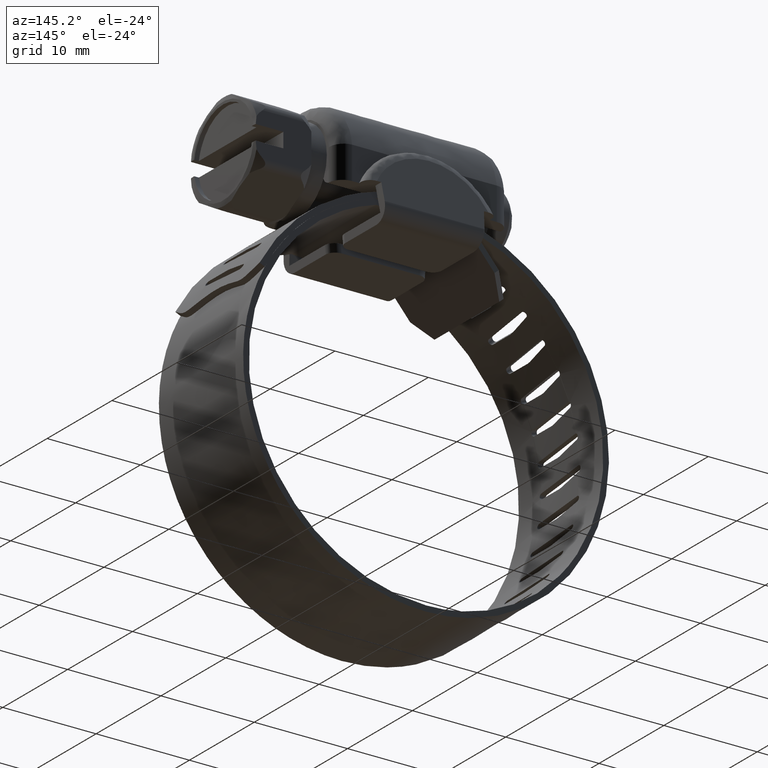
[diagram: clean part render]
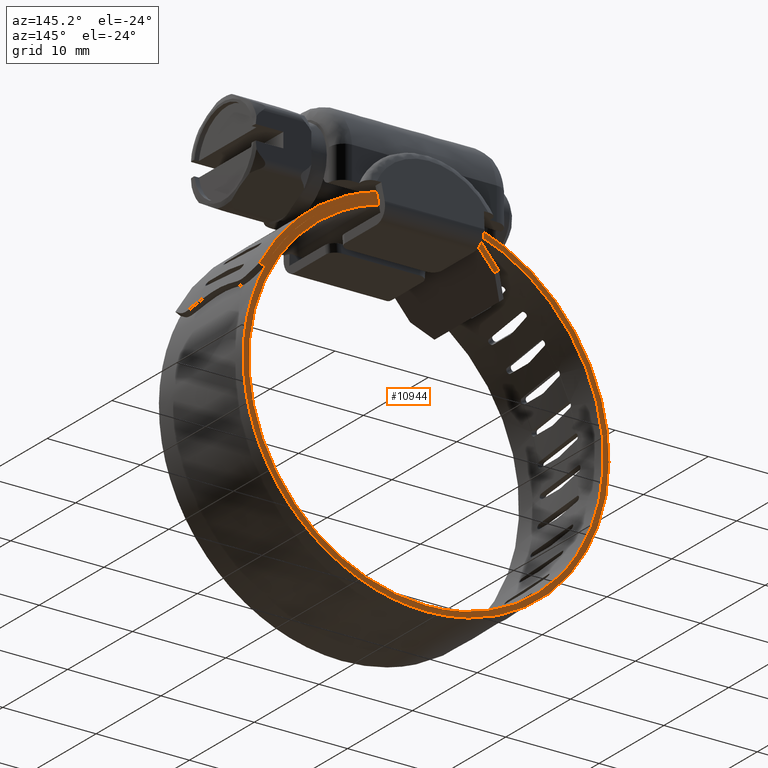
[diagram: same view with one face highlighted and labeled with its STEP entity id]
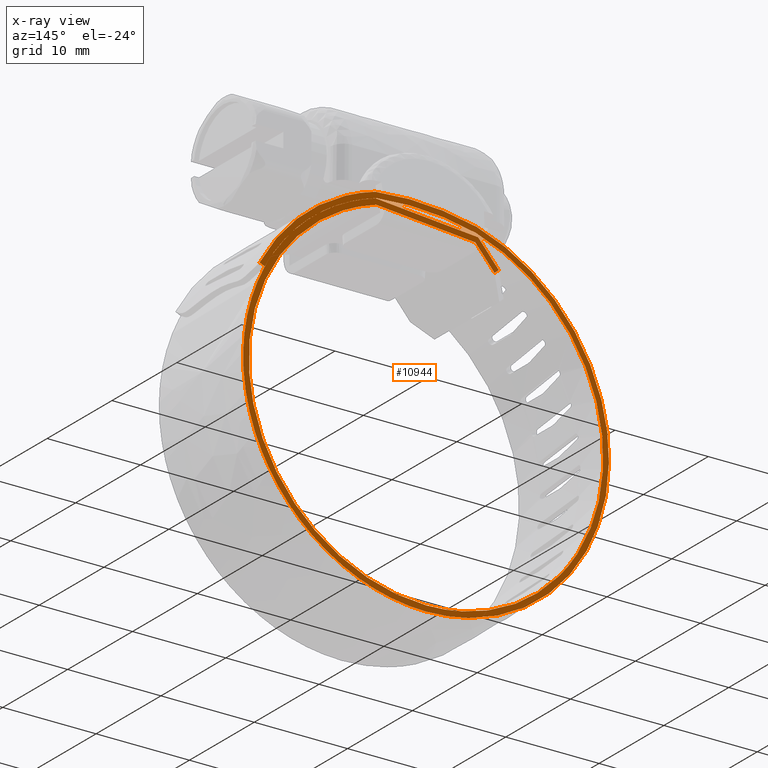
[diagram: x-ray of the same camera — body ghosted, the highlighted face saturated]
A machine part, auxiliary view. The second image highlights one B-rep face of the part: STEP entity #10944.
The next image is the same camera in x-ray: the body ghosted, the highlighted face saturated — about 0% of this face is hidden behind the body in this view.
In plain terms, the highlighted face is a freeform B-spline surface patch.
Its self-contained STEP definition (entity closure, byte-faithful):
#8962=CARTESIAN_POINT('',(-7.334361634838660,6.499999999999799,7.958637563433001));
#8963=VERTEX_POINT('',#8962);
#8976=CARTESIAN_POINT('',(-7.791182140045611,6.499999999999799,8.347630142105899));
#8977=VERTEX_POINT('',#8976);
#8983=CARTESIAN_POINT('',(-7.334361634838660,6.499999999999799,7.958637563433001));
#8984=CARTESIAN_POINT('',(-7.791182140045611,6.499999999999799,8.347630142105899));
#8985=QUASI_UNIFORM_CURVE('',1,(#8983,#8984),.UNSPECIFIED.,.F.,.U.);
#8986=EDGE_CURVE('',#8963,#8977,#8985,.T.);
#9041=CARTESIAN_POINT('',(5.411996900145090,6.499999999999840,11.914001209067280));
#9042=VERTEX_POINT('',#9041);
#9048=CARTESIAN_POINT('',(-5.572333904251720,6.499999999999840,10.953369879985059));
#9049=VERTEX_POINT('',#9048);
#9050=CARTESIAN_POINT('',(-5.572333904251720,6.499999999999840,10.953369879985059));
#9051=CARTESIAN_POINT('',(5.411996900145090,6.499999999999840,11.914001209067280));
#9052=QUASI_UNIFORM_CURVE('',1,(#9050,#9051),.UNSPECIFIED.,.F.,.U.);
#9053=EDGE_CURVE('',#9049,#9042,#9052,.T.);
#9068=CARTESIAN_POINT('',(-7.791182140045611,6.499999999999799,8.347630142105899));
#9069=CARTESIAN_POINT('',(-5.572333904251720,6.499999999999840,10.953369879985059));
#9070=QUASI_UNIFORM_CURVE('',1,(#9068,#9069),.UNSPECIFIED.,.F.,.U.);
#9071=EDGE_CURVE('',#8977,#9049,#9070,.T.);
#9112=CARTESIAN_POINT('',(-5.275000759049860,6.499999999999840,10.377082108597479));
#9113=VERTEX_POINT('',#9112);
#9114=CARTESIAN_POINT('',(-5.275000759049860,6.499999999999840,10.377082108597479));
#9115=CARTESIAN_POINT('',(-7.334361634838660,6.499999999999799,7.958637563433001));
#9116=QUASI_UNIFORM_CURVE('',1,(#9114,#9115),.UNSPECIFIED.,.F.,.U.);
#9117=EDGE_CURVE('',#9113,#8963,#9116,.T.);
#9148=CARTESIAN_POINT('',(5.352451692588431,6.499999999999840,11.306503582690940));
#9149=VERTEX_POINT('',#9148);
#9150=CARTESIAN_POINT('',(5.352451692588431,6.499999999999840,11.306503582690940));
#9151=CARTESIAN_POINT('',(-5.275000759049860,6.499999999999840,10.377082108597479));
#9152=QUASI_UNIFORM_CURVE('',1,(#9150,#9151),.UNSPECIFIED.,.F.,.U.);
#9153=EDGE_CURVE('',#9149,#9113,#9152,.T.);
#10504=CARTESIAN_POINT('',(17.840078122761899,6.499999999999840,2.572089330548310));
#10505=VERTEX_POINT('',#10504);
#10512=CARTESIAN_POINT('',(17.293638261857499,6.499999999999840,2.321657124727315));
#10513=VERTEX_POINT('',#10512);
#10519=CARTESIAN_POINT('',(17.293638261857499,6.499999999999840,2.321657124727315));
#10520=CARTESIAN_POINT('',(17.840078122761899,6.499999999999840,2.572089330548310));
#10521=QUASI_UNIFORM_CURVE('',1,(#10519,#10520),.UNSPECIFIED.,.F.,.U.);
#10522=EDGE_CURVE('',#10513,#10505,#10521,.T.);
#10755=CARTESIAN_POINT('',(-21.537033099898011,6.499999999999799,14.717829198422089));
#10756=CARTESIAN_POINT('',(21.536634747135800,6.499999999999799,14.717829198422089));
#10757=CARTESIAN_POINT('',(-21.537033099898011,6.499999999999799,-28.486026593880521));
#10758=CARTESIAN_POINT('',(21.536634747135800,6.499999999999799,-28.486026593880521));
#10759=B_SPLINE_SURFACE_WITH_KNOTS('',1,1,((#10755,#10757),(#10756,#10758)),.UNSPECIFIED.,.F.,.F.,.U.,(2,2),(2,2),(0.0,43.073667847033818),(0.0,43.203855792302612),.UNSPECIFIED.);
#10760=ORIENTED_EDGE('',*,*,#9117,.T.);
#10761=ORIENTED_EDGE('',*,*,#8986,.T.);
#10762=ORIENTED_EDGE('',*,*,#9071,.T.);
#10763=ORIENTED_EDGE('',*,*,#9053,.T.);
#10764=CARTESIAN_POINT('',(-0.004531895000179,6.499999999999840,-26.523999476069580));
#10765=VERTEX_POINT('',#10764);
#10766=CARTESIAN_POINT('',(-0.004531895000179,6.499999999999840,-26.523999476069580));
#10767=CARTESIAN_POINT('',(0.725886337814285,6.499999999999841,-26.524176945984092));
#10768=CARTESIAN_POINT('',(2.369354966252714,6.499999999999839,-26.432605813740931));
#10769=CARTESIAN_POINT('',(4.745975734426504,6.499999999999850,-25.996601591221609));
#10770=CARTESIAN_POINT('',(7.010584989958026,6.499999999999824,-25.271126520168281));
#10771=CARTESIAN_POINT('',(8.879138861826839,6.499999999999875,-24.432604865221549));
#10772=CARTESIAN_POINT('',(10.560936009352050,6.499999999999796,-23.470479320121552));
#10773=CARTESIAN_POINT('',(12.383304635262210,6.499999999999876,-22.184150816374519));
#10774=CARTESIAN_POINT('',(14.059515369673630,6.499999999999817,-20.652267694753519));
#10775=CARTESIAN_POINT('',(15.794001088472250,6.499999999999834,-18.623584603838111));
#10776=CARTESIAN_POINT('',(17.136928511362271,6.499999999999900,-16.568509648419610));
#10777=CARTESIAN_POINT('',(18.287706328910179,6.499999999999686,-14.118021473316540));
#10778=CARTESIAN_POINT('',(18.987097886712760,6.500000000000273,-11.959074599438351));
#10779=CARTESIAN_POINT('',(19.420080848577481,6.499999999999051,-9.808496574675736));
#10780=CARTESIAN_POINT('',(19.631372888088691,6.500000000000179,-7.661086366921279));
#10781=CARTESIAN_POINT('',(19.585440638702579,6.499999999999673,-5.282755107511505));
#10782=CARTESIAN_POINT('',(19.245682366735071,6.499999999999901,-3.002324633063102));
#10783=CARTESIAN_POINT('',(18.663591472926729,6.499999999999831,-0.811466112911441));
#10784=CARTESIAN_POINT('',(17.753743988054708,6.499999999999843,1.543635155971890));
#10785=CARTESIAN_POINT('',(16.510367340035359,6.499999999999835,3.745670590767302));
#10786=CARTESIAN_POINT('',(15.146703278751010,6.499999999999872,5.556524795908267));
#10787=CARTESIAN_POINT('',(13.651789236462109,6.499999999999614,7.210924098323774));
#10788=CARTESIAN_POINT('',(11.850255652214720,6.500000000000505,8.768768572583571));
#10789=CARTESIAN_POINT('',(9.852344341506793,6.499999999998895,10.058389447612450));
#10790=CARTESIAN_POINT('',(7.801923602922953,6.500000000001353,11.106682167382600));
#10791=CARTESIAN_POINT('',(6.359752564483216,6.499999999998201,11.641788656112359));
#10792=CARTESIAN_POINT('',(5.411996900145090,6.499999999999840,11.914001209067280));
#10793=B_SPLINE_CURVE_WITH_KNOTS('',3,(#10766,#10767,#10768,#10769,#10770,#10771,#10772,#10773,#10774,#10775,#10776,#10777,#10778,#10779,#10780,#10781,#10782,#10783,#10784,#10785,#10786,#10787,#10788,#10789,#10790,#10791,#10792),.UNSPECIFIED.,.F.,.U.,(4,1,1,1,1,1,1,1,1,1,1,1,1,1,1,1,1,1,1,1,1,1,1,1,4),(0.000000016172486,2.191258828288738,4.930341531735550,7.231200000732230,9.312905358273909,11.065920897724940,13.038070963216180,15.996295667064580,17.858874575280630,21.036237479420141,23.337069433180002,25.966607560334609,27.829175664592888,29.910842973488961,32.430832254236940,34.950782125903302,36.813379226954481,39.223773529684081,42.510691446333979,44.373277976478107,46.016735603343278,49.194076442628408,51.494931940516778,53.138371961810130,56.096579930599852),.UNSPECIFIED.);
#10794=EDGE_CURVE('',#10765,#9042,#10793,.T.);
#10795=ORIENTED_EDGE('',*,*,#10794,.F.);
#10796=CARTESIAN_POINT('',(-5.403284909101160,6.499999999999840,11.916501909213560));
#10797=VERTEX_POINT('',#10796);
#10798=CARTESIAN_POINT('',(-5.403284909101160,6.499999999999840,11.916501909213560));
#10799=CARTESIAN_POINT('',(-6.140516903082173,6.499999999999820,11.705094821300660));
#10800=CARTESIAN_POINT('',(-7.486551106623252,6.499999999999877,11.231948068612040));
#10801=CARTESIAN_POINT('',(-9.596948230195309,6.499999999999833,10.220372525541210));
#10802=CARTESIAN_POINT('',(-11.511379028201249,6.499999999999838,9.000892766774353));
#10803=CARTESIAN_POINT('',(-13.090720747617860,6.499999999999849,7.696936439639883));
#10804=CARTESIAN_POINT('',(-14.419790939086530,6.499999999999806,6.390527652845145));
#10805=CARTESIAN_POINT('',(-15.628070589369621,6.499999999999936,4.969215286002469));
#10806=CARTESIAN_POINT('',(-16.756441684473110,6.499999999999666,3.304006357712205));
#10807=CARTESIAN_POINT('',(-17.698934188431551,6.499999999999991,1.569404213287578));
#10808=CARTESIAN_POINT('',(-18.553293871694532,6.499999999999623,-0.451813744564917));
#10809=CARTESIAN_POINT('',(-19.253958891820979,6.500000000000098,-2.916900028260594));
#10810=CARTESIAN_POINT('',(-19.587531319319449,6.499999999999531,-5.384468385986027));
#10811=CARTESIAN_POINT('',(-19.617058673211769,6.500000000000251,-7.468321331348138));
#10812=CARTESIAN_POINT('',(-19.476847408818340,6.499999999999345,-9.400333478388076));
#10813=CARTESIAN_POINT('',(-19.067331741570850,6.500000000000173,-11.743171108005360));
#10814=CARTESIAN_POINT('',(-18.293957137092399,6.499999999999714,-14.111691467228690));
#10815=CARTESIAN_POINT('',(-17.304033755846771,6.499999999999867,-16.191579717471331));
#10816=CARTESIAN_POINT('',(-16.252738149130330,6.499999999999831,-17.948568986104089));
#10817=CARTESIAN_POINT('',(-14.728445938607210,6.499999999999849,-19.961239050203758));
#10818=CARTESIAN_POINT('',(-12.664512282052319,6.499999999999830,-21.991785610794700));
#10819=CARTESIAN_POINT('',(-10.335964055470560,6.499999999999846,-23.646795091448212));
#10820=CARTESIAN_POINT('',(-8.230835672506782,6.499999999999862,-24.752776408187980));
#10821=CARTESIAN_POINT('',(-5.953706084315796,6.499999999999750,-25.655930566800340));
#10822=CARTESIAN_POINT('',(-3.254840614917475,6.500000000000024,-26.342106536156951));
#10823=CARTESIAN_POINT('',(-1.100165826703362,6.499999999999689,-26.523829065230121));
#10824=CARTESIAN_POINT('',(-0.004531895000179,6.499999999999840,-26.523999476069580));
#10825=B_SPLINE_CURVE_WITH_KNOTS('',3,(#10798,#10799,#10800,#10801,#10802,#10803,#10804,#10805,#10806,#10807,#10808,#10809,#10810,#10811,#10812,#10813,#10814,#10815,#10816,#10817,#10818,#10819,#10820,#10821,#10822,#10823,#10824),.UNSPECIFIED.,.F.,.U.,(4,1,1,1,1,1,1,1,1,1,1,1,1,1,1,1,1,1,1,1,1,1,1,1,4),(0.000000016416962,2.300833089275486,4.272961304612949,7.012055833639998,9.093771975293691,10.408537798968570,12.599818114950830,14.681529192904010,16.434548652694161,18.516256564770391,21.255362353368749,24.104001827212080,25.966607560468859,27.500498071829281,29.910842973606780,33.088203585792641,34.950782125999737,36.813379227042731,39.223773529761878,42.510691446396478,45.468910758218158,47.769751351625843,49.632346457777743,52.809687906362171,56.096579930599297),.UNSPECIFIED.);
#10826=EDGE_CURVE('',#10797,#10765,#10825,.T.);
#10827=ORIENTED_EDGE('',*,*,#10826,.F.);
#10828=CARTESIAN_POINT('',(5.456756768785899,6.499999999999840,12.535391192077659));
#10829=VERTEX_POINT('',#10828);
#10830=CARTESIAN_POINT('',(5.456756768785899,6.499999999999840,12.535391192077659));
#10831=CARTESIAN_POINT('',(4.099701335029489,6.499999999999851,12.698084228196890));
#10832=CARTESIAN_POINT('',(1.820006464981645,6.499999999999820,12.819402491195699));
#10833=CARTESIAN_POINT('',(-1.822343654495573,6.499999999999904,12.611826586162071));
#10834=CARTESIAN_POINT('',(-4.073500048048214,6.499999999999801,12.232320164062751));
#10835=CARTESIAN_POINT('',(-5.403284909101160,6.499999999999840,11.916501909213560));
#10836=B_SPLINE_CURVE_WITH_KNOTS('',3,(#10830,#10831,#10832,#10833,#10834,#10835),.UNSPECIFIED.,.F.,.U.,(4,1,1,4),(7.745946E-010,4.100311962892907,6.833848439603918,10.934160401722201),.UNSPECIFIED.);
#10837=EDGE_CURVE('',#10829,#10797,#10836,.T.);
#10838=ORIENTED_EDGE('',*,*,#10837,.F.);
#10839=CARTESIAN_POINT('',(17.840078122761899,6.499999999999840,2.572089330548310));
#10840=CARTESIAN_POINT('',(17.280515982526111,6.499999999999839,3.623561952561824));
#10841=CARTESIAN_POINT('',(16.301105986898559,6.499999999999841,5.126140591840689));
#10842=CARTESIAN_POINT('',(14.468935791277181,6.499999999999825,7.257100688362094));
#10843=CARTESIAN_POINT('',(12.768800282048320,6.499999999999846,8.811603355690153));
#10844=CARTESIAN_POINT('',(10.924133720881031,6.499999999999843,10.112841682599671));
#10845=CARTESIAN_POINT('',(9.227328945242975,6.499999999999844,11.090747472844580));
#10846=CARTESIAN_POINT('',(7.444571493686907,6.499999999999829,11.904262455421801));
#10847=CARTESIAN_POINT('',(6.112097994972267,6.499999999999862,12.351631602519520));
#10848=CARTESIAN_POINT('',(5.456756768785899,6.499999999999840,12.535391192077659));
#10849=B_SPLINE_CURVE_WITH_KNOTS('',3,(#10839,#10840,#10841,#10842,#10843,#10844,#10845,#10846,#10847,#10848),.UNSPECIFIED.,.F.,.U.,(4,1,1,1,1,1,1,4),(1.402956E-009,3.573255003478094,5.359885761785067,8.422670412562852,10.464527578311570,12.123543530547650,14.293025208384741,16.334879746945589),.UNSPECIFIED.);
#10850=EDGE_CURVE('',#10505,#10829,#10849,.T.);
#10851=ORIENTED_EDGE('',*,*,#10850,.F.);
#10852=ORIENTED_EDGE('',*,*,#10522,.F.);
#10853=CARTESIAN_POINT('',(5.294755083418680,6.499999999999840,11.957675471382620));
#10854=VERTEX_POINT('',#10853);
#10855=CARTESIAN_POINT('',(17.293638261857499,6.499999999999840,2.321657124727315));
#10856=CARTESIAN_POINT('',(16.982976060587308,6.499999999999853,2.902751567264222));
#10857=CARTESIAN_POINT('',(16.239267673478480,6.499999999999824,4.139609060696022));
#10858=CARTESIAN_POINT('',(14.763042209389081,6.499999999999878,6.075022204849408));
#10859=CARTESIAN_POINT('',(12.715377065352261,6.499999999999750,8.115917672197305));
#10860=CARTESIAN_POINT('',(10.399339746690670,6.499999999999940,9.780050477675186));
#10861=CARTESIAN_POINT('',(7.876467996132071,6.499999999999816,11.097597668927859));
#10862=CARTESIAN_POINT('',(6.246450531694229,6.499999999999952,11.690860160791139));
#10863=CARTESIAN_POINT('',(5.294755083418680,6.499999999999840,11.957675471382620));
#10864=B_SPLINE_CURVE_WITH_KNOTS('',3,(#10855,#10856,#10857,#10858,#10859,#10860,#10861,#10862,#10863),.UNSPECIFIED.,.F.,.U.,(4,1,1,1,1,1,4),(1.899624E-009,1.976778186998224,4.324205496462335,7.289379132081590,10.625188663040269,12.849066440856520,15.814234351105140),.UNSPECIFIED.);
#10865=EDGE_CURVE('',#10513,#10854,#10864,.T.);
#10866=ORIENTED_EDGE('',*,*,#10865,.T.);
#10867=CARTESIAN_POINT('',(-5.352451692588431,6.499999999999840,11.306503582690940));
#10868=VERTEX_POINT('',#10867);
#10869=CARTESIAN_POINT('',(5.294755083418680,6.499999999999840,11.957675471382620));
#10870=CARTESIAN_POINT('',(3.852328498000840,6.499999999999863,12.123922236274000));
#10871=CARTESIAN_POINT('',(1.726802323171397,6.499999999999822,12.215838354588490));
#10872=CARTESIAN_POINT('',(-1.842551146541560,6.499999999999851,11.997548486138180));
#10873=CARTESIAN_POINT('',(-3.941034636759230,6.499999999999851,11.647284834161550));
#10874=CARTESIAN_POINT('',(-5.352451692588431,6.499999999999840,11.306503582690940));
#10875=B_SPLINE_CURVE_WITH_KNOTS('',3,(#10869,#10870,#10871,#10872,#10873,#10874),.UNSPECIFIED.,.F.,.U.,(4,1,1,4),(7.544241E-010,4.355908433506262,6.366323266907789,10.722231699659860),.UNSPECIFIED.);
#10876=EDGE_CURVE('',#10854,#10868,#10875,.T.);
#10877=ORIENTED_EDGE('',*,*,#10876,.T.);
#10878=CARTESIAN_POINT('',(0.0,6.499999999999840,-25.923999999999999));
#10879=VERTEX_POINT('',#10878);
#10880=CARTESIAN_POINT('',(-5.352451692588431,6.499999999999840,11.306503582690940));
#10881=CARTESIAN_POINT('',(-6.199904557952332,6.499999999999854,11.057736206017280));
#10882=CARTESIAN_POINT('',(-7.826794444529046,6.499999999999823,10.454007476103440));
#10883=CARTESIAN_POINT('',(-10.198668929298350,6.499999999999861,9.182959219649266));
#10884=CARTESIAN_POINT('',(-12.224931504330341,6.499999999999828,7.692436640296440));
#10885=CARTESIAN_POINT('',(-13.781485421391130,6.499999999999866,6.197186626057674));
#10886=CARTESIAN_POINT('',(-14.957738998847210,6.499999999999843,4.830553144242163));
#10887=CARTESIAN_POINT('',(-16.011975830691160,6.499999999999903,3.366928515068491));
#10888=CARTESIAN_POINT('',(-17.068747668649848,6.499999999999863,1.525624448350164));
#10889=CARTESIAN_POINT('',(-17.870360011329531,6.499999999999849,-0.364698511358428));
#10890=CARTESIAN_POINT('',(-18.456516859493540,6.499999999999687,-2.293064095300148));
#10891=CARTESIAN_POINT('',(-18.864745700842811,6.499999999999974,-4.303976029203933));
#10892=CARTESIAN_POINT('',(-19.029549455387450,6.499999999999768,-6.350987960944607));
#10893=CARTESIAN_POINT('',(-18.971215290066102,6.499999999999864,-8.400984797324838));
#10894=CARTESIAN_POINT('',(-18.727658571556422,6.499999999999905,-10.367115735387150));
#10895=CARTESIAN_POINT('',(-18.252752994107141,6.499999999999822,-12.327923049694610));
#10896=CARTESIAN_POINT('',(-17.549859336881550,6.499999999999857,-14.292415287790661));
#10897=CARTESIAN_POINT('',(-16.525458419421231,6.499999999999765,-16.430778769673299));
#10898=CARTESIAN_POINT('',(-15.048244639191450,6.499999999999991,-18.641582540373271));
#10899=CARTESIAN_POINT('',(-13.091227045318460,6.499999999999772,-20.786355317158652));
#10900=CARTESIAN_POINT('',(-11.144596123087220,6.499999999999885,-22.380323868006599));
#10901=CARTESIAN_POINT('',(-9.220241360901907,6.499999999999830,-23.573420346521051));
#10902=CARTESIAN_POINT('',(-7.472583152764227,6.499999999999838,-24.427631828580669));
#10903=CARTESIAN_POINT('',(-5.780311461632272,6.499999999999843,-25.053443446285680));
#10904=CARTESIAN_POINT('',(-4.037311014822396,6.499999999999836,-25.515966773975830));
#10905=CARTESIAN_POINT('',(-2.155013753548566,6.499999999999848,-25.839336901196820));
#10906=CARTESIAN_POINT('',(-0.777219739011237,6.499999999999840,-25.924024309216279));
#10907=CARTESIAN_POINT('',(0.0,6.499999999999840,-25.923999999999999));
#10908=B_SPLINE_CURVE_WITH_KNOTS('',3,(#10880,#10881,#10882,#10883,#10884,#10885,#10886,#10887,#10888,#10889,#10890,#10891,#10892,#10893,#10894,#10895,#10896,#10897,#10898,#10899,#10900,#10901,#10902,#10903,#10904,#10905,#10906,#10907),.UNSPECIFIED.,.F.,.U.,(4,1,1,1,1,1,1,1,1,1,1,1,1,1,1,1,1,1,1,1,1,1,1,1,1,4),(0.000000021341492,2.649630234738467,5.193272695706760,8.054864876527645,10.174572772433370,11.658371465139791,13.460123301493210,15.579833473803060,18.017498766721889,19.607278023968149,21.620997527634628,24.164654794768641,25.754416216812530,27.768095058325201,30.099797147663260,31.795544443779828,34.021237232044690,37.200810012982558,39.744453846794080,42.712047182959523,44.725772991965812,46.527525162476699,48.541243633972087,50.131024573252184,51.932771031046322,54.264430056367672),.UNSPECIFIED.);
#10909=EDGE_CURVE('',#10868,#10879,#10908,.T.);
#10910=ORIENTED_EDGE('',*,*,#10909,.T.);
#10911=CARTESIAN_POINT('',(0.0,6.499999999999840,-25.923999999999999));
#10912=CARTESIAN_POINT('',(1.236496528820002,6.499999999999825,-25.924147914161939));
#10913=CARTESIAN_POINT('',(3.320795979274506,6.499999999999879,-25.719777379269960));
#10914=CARTESIAN_POINT('',(6.296002734282221,6.499999999999812,-24.921376582079201));
#10915=CARTESIAN_POINT('',(8.541168270579222,6.499999999999905,-23.953010722240869));
#10916=CARTESIAN_POINT('',(10.643398663061980,6.499999999999806,-22.713558135490789));
#10917=CARTESIAN_POINT('',(12.281913410621160,6.499999999999785,-21.475535692687352));
#10918=CARTESIAN_POINT('',(13.971617951914141,6.499999999999932,-19.864977254796809));
#10919=CARTESIAN_POINT('',(15.214807993173190,6.499999999999743,-18.365537083938161));
#10920=CARTESIAN_POINT('',(16.446971170643430,6.499999999999685,-16.510266400488259));
#10921=CARTESIAN_POINT('',(17.395961225777651,6.499999999999873,-14.688603495051270));
#10922=CARTESIAN_POINT('',(18.280914923270029,6.499999999999793,-12.299630665567140));
#10923=CARTESIAN_POINT('',(18.791700142711349,6.499999999999915,-10.054158974700650));
#10924=CARTESIAN_POINT('',(19.034363528562299,6.499999999999695,-7.589971416376764));
#10925=CARTESIAN_POINT('',(18.991192443229458,6.499999999999878,-5.607250640980657));
#10926=CARTESIAN_POINT('',(18.720939101865639,6.499999999999799,-3.503431503835219));
#10927=CARTESIAN_POINT('',(18.309642214076369,6.499999999999894,-1.709444912043443));
#10928=CARTESIAN_POINT('',(17.671657143466650,6.499999999999737,0.128204739593146));
#10929=CARTESIAN_POINT('',(16.940694303964008,6.499999999999838,1.738222284670580));
#10930=CARTESIAN_POINT('',(16.012179447013430,6.499999999999731,3.366615263727755));
#10931=CARTESIAN_POINT('',(14.961582881678160,6.499999999999864,4.833810365443569));
#10932=CARTESIAN_POINT('',(13.661653018153570,6.499999999999833,6.327197787766400));
#10933=CARTESIAN_POINT('',(12.113799778213959,6.499999999999841,7.781236878367387));
#10934=CARTESIAN_POINT('',(10.191094300222201,6.499999999999840,9.170872609994916));
#10935=CARTESIAN_POINT('',(7.924366876084874,6.499999999999844,10.410174504190220));
#10936=CARTESIAN_POINT('',(6.301593708167160,6.499999999999842,11.027896853092960));
#10937=CARTESIAN_POINT('',(5.352451692588431,6.499999999999840,11.306503582690940));
#10938=B_SPLINE_CURVE_WITH_KNOTS('',3,(#10911,#10912,#10913,#10914,#10915,#10916,#10917,#10918,#10919,#10920,#10921,#10922,#10923,#10924,#10925,#10926,#10927,#10928,#10929,#10930,#10931,#10932,#10933,#10934,#10935,#10936,#10937),.UNSPECIFIED.,.F.,.U.,(4,1,1,1,1,1,1,1,1,1,1,1,1,1,1,1,1,1,1,1,1,1,1,1,4),(0.000000021347141,3.709457123202753,6.253112685407167,9.220703835274072,11.022457608173729,13.566108523891140,15.367861333644511,18.017498766726661,19.395302164144670,22.044943759211350,24.164654794771799,27.026238951711580,28.933938344150089,31.583592962402211,32.961401323151527,35.293065838393431,37.094819026246839,38.790584479952429,40.592337852953371,42.712047182959992,44.195843830915223,46.527525162477062,49.071162783512847,51.296871510183067,54.264430056367651),.UNSPECIFIED.);
#10939=EDGE_CURVE('',#10879,#9149,#10938,.T.);
#10940=ORIENTED_EDGE('',*,*,#10939,.T.);
#10941=ORIENTED_EDGE('',*,*,#9153,.T.);
#10942=EDGE_LOOP('',(#10760,#10761,#10762,#10763,#10795,#10827,#10838,#10851,#10852,#10866,#10877,#10910,#10940,#10941));
#10943=FACE_OUTER_BOUND('',#10942,.T.);
#10944=ADVANCED_FACE('',(#10943),#10759,.T.);